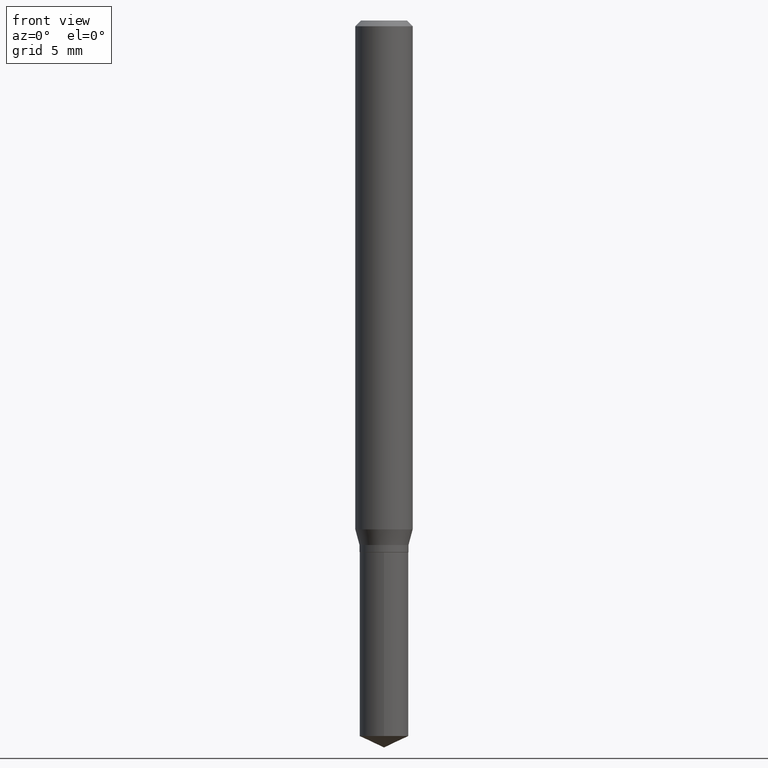
[diagram: clean part render]
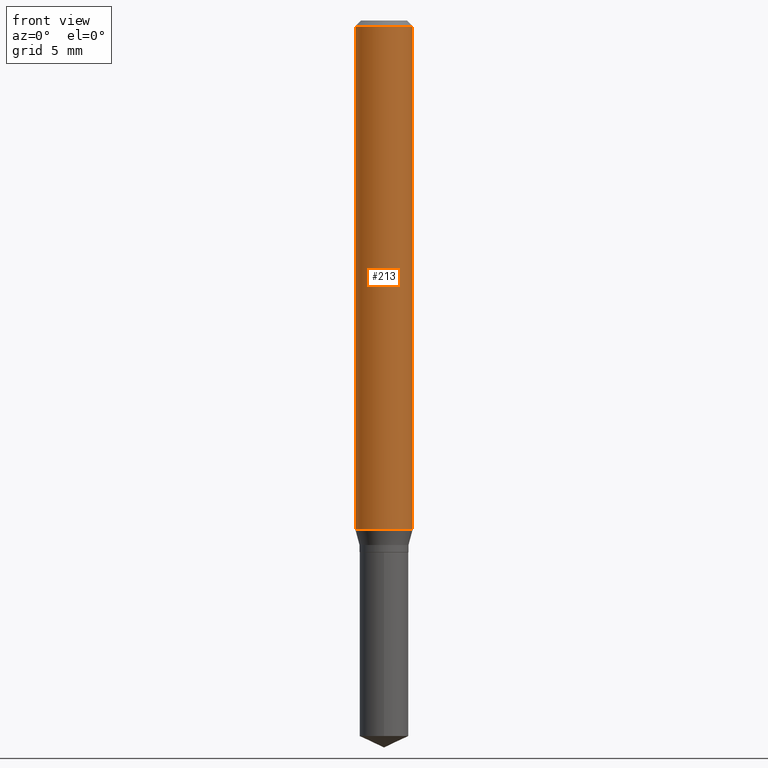
[diagram: same view with one face highlighted and labeled with its STEP entity id]
A machine part, front view. The second image highlights one B-rep face of the part: STEP entity #213.
In plain terms, the highlighted cylindrical surface (edge-blend (fillet) strip) has radius 1.4999 mm, axis along (-0, 0, 1).
Its self-contained STEP definition (entity closure, byte-faithful):
#12 = CARTESIAN_POINT ( 'NONE',  ( 0.05905000000000013710, -4.068336066525078042E-15, -1.047117760514528761 ) ) ;
#33 = LINE ( 'NONE', #269, #367 ) ;
#55 = ORIENTED_EDGE ( 'NONE', *, *, #103, .F. ) ;
#64 = AXIS2_PLACEMENT_3D ( 'NONE', #166, #328, #469 ) ;
#83 = DIRECTION ( 'NONE',  ( 1.000000000000000000, -6.982962677686264344E-15, 0.000000000000000000 ) ) ;
#84 = CARTESIAN_POINT ( 'NONE',  ( -0.05904999999999999832, -1.429037772043379946E-15, -0.01181000000000007218 ) ) ;
#86 = DIRECTION ( 'NONE',  ( -2.445468806185136877E-29, 3.491481338843145188E-15, 1.000000000000000000 ) ) ;
#92 = EDGE_LOOP ( 'NONE', ( #55, #414, #333, #101 ) ) ;
#101 = ORIENTED_EDGE ( 'NONE', *, *, #155, .F. ) ;
#103 = EDGE_CURVE ( 'NONE', #246, #226, #361, .T. ) ;
#123 = DIRECTION ( 'NONE',  ( 1.000000000000000000, -6.982962677686266711E-15, 4.876176775795936353E-29 ) ) ;
#155 = EDGE_CURVE ( 'NONE', #226, #167, #284, .T. ) ;
#160 = AXIS2_PLACEMENT_3D ( 'NONE', #292, #251, #83 ) ;
#166 = CARTESIAN_POINT ( 'NONE',  ( 2.888098660104664204E-31, -4.123439461173780263E-17, -0.01181000000000007218 ) ) ;
#167 = VERTEX_POINT ( 'NONE', #370 ) ;
#213 = ADVANCED_FACE ( 'NONE', ( #255 ), #217, .T. ) ;
#217 = CYLINDRICAL_SURFACE ( 'NONE', #319, 0.05905000000000006771 ) ;
#226 = VERTEX_POINT ( 'NONE', #84 ) ;
#246 = VERTEX_POINT ( 'NONE', #307 ) ;
#251 = DIRECTION ( 'NONE',  ( -2.445468806185136597E-29, 3.491481338843145583E-15, 1.000000000000000000 ) ) ;
#255 = FACE_OUTER_BOUND ( 'NONE', #92, .T. ) ;
#263 = EDGE_CURVE ( 'NONE', #452, #167, #33, .T. ) ;
#269 = CARTESIAN_POINT ( 'NONE',  ( 0.05905000000000006771, -4.123439461173745257E-16, 2.879382386107503723E-30 ) ) ;
#276 = VECTOR ( 'NONE', #86, 39.37007874015748143 ) ;
#280 = DIRECTION ( 'NONE',  ( -2.445468806185136597E-29, 3.491481338843145583E-15, 1.000000000000000000 ) ) ;
#284 = CIRCLE ( 'NONE', #64, 0.05904999999999999832 ) ;
#292 = CARTESIAN_POINT ( 'NONE',  ( 2.560693819740718204E-29, -3.655992120407703121E-15, -1.047117760514528761 ) ) ;
#307 = CARTESIAN_POINT ( 'NONE',  ( -0.05905000000000013710, -3.236416634941363234E-15, -1.047117760514528761 ) ) ;
#319 = AXIS2_PLACEMENT_3D ( 'NONE', #321, #280, #123 ) ;
#321 = CARTESIAN_POINT ( 'NONE',  ( 0.000000000000000000, 0.000000000000000000, 0.000000000000000000 ) ) ;
#328 = DIRECTION ( 'NONE',  ( -2.445468806185136597E-29, 3.491481338843145583E-15, 1.000000000000000000 ) ) ;
#333 = ORIENTED_EDGE ( 'NONE', *, *, #263, .T. ) ;
#361 = LINE ( 'NONE', #435, #276 ) ;
#367 = VECTOR ( 'NONE', #480, 39.37007874015748143 ) ;
#370 = CARTESIAN_POINT ( 'NONE',  ( 0.05904999999999999832, -4.535783407291118600E-16, -0.01181000000000007218 ) ) ;
#388 = CIRCLE ( 'NONE', #160, 0.05905000000000013710 ) ;
#403 = EDGE_CURVE ( 'NONE', #246, #452, #388, .T. ) ;
#414 = ORIENTED_EDGE ( 'NONE', *, *, #403, .T. ) ;
#435 = CARTESIAN_POINT ( 'NONE',  ( -0.05905000000000006771, 4.195754854663396409E-16, -2.904631170795525045E-30 ) ) ;
#452 = VERTEX_POINT ( 'NONE', #12 ) ;
#469 = DIRECTION ( 'NONE',  ( 1.000000000000000000, -6.982962677686266711E-15, 0.000000000000000000 ) ) ;
#480 = DIRECTION ( 'NONE',  ( -2.445468806185136877E-29, 3.491481338843145188E-15, 1.000000000000000000 ) ) ;